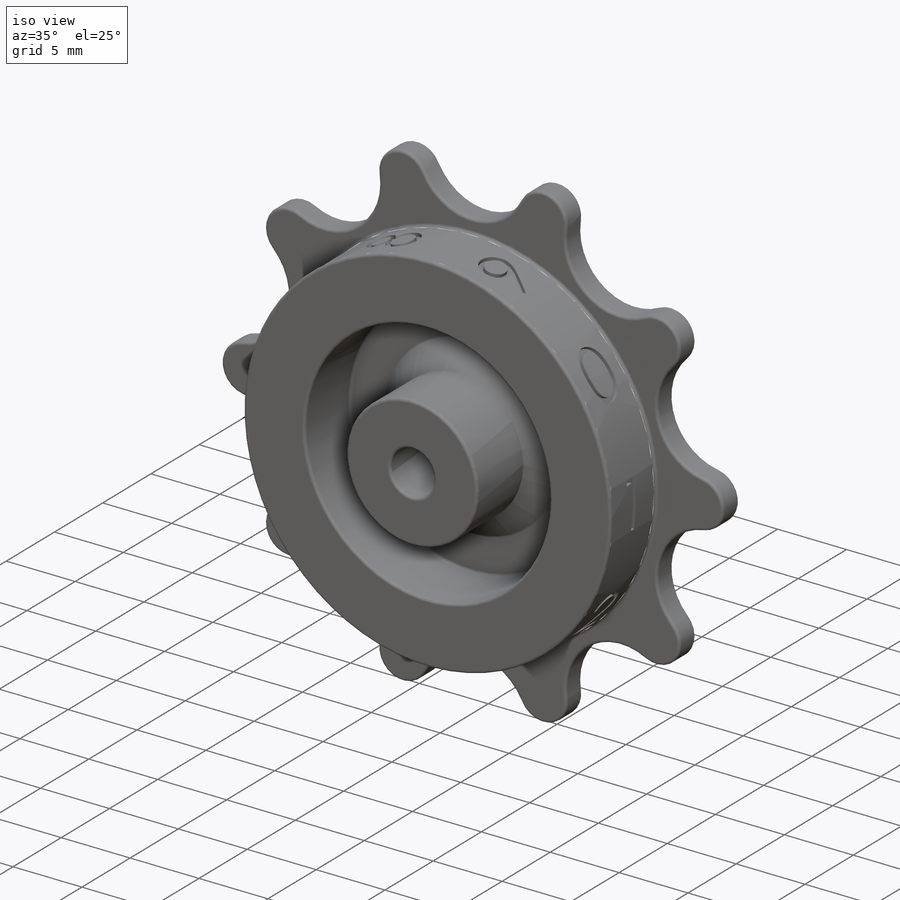
[diagram: iso view]
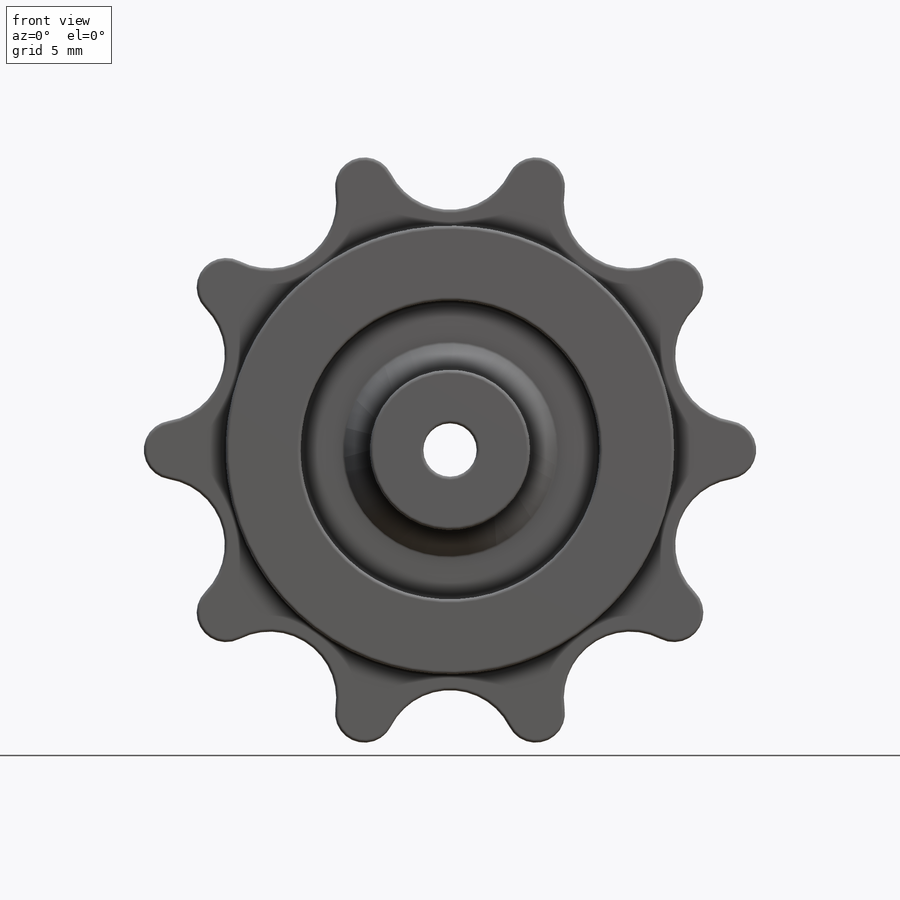
[diagram: front view]
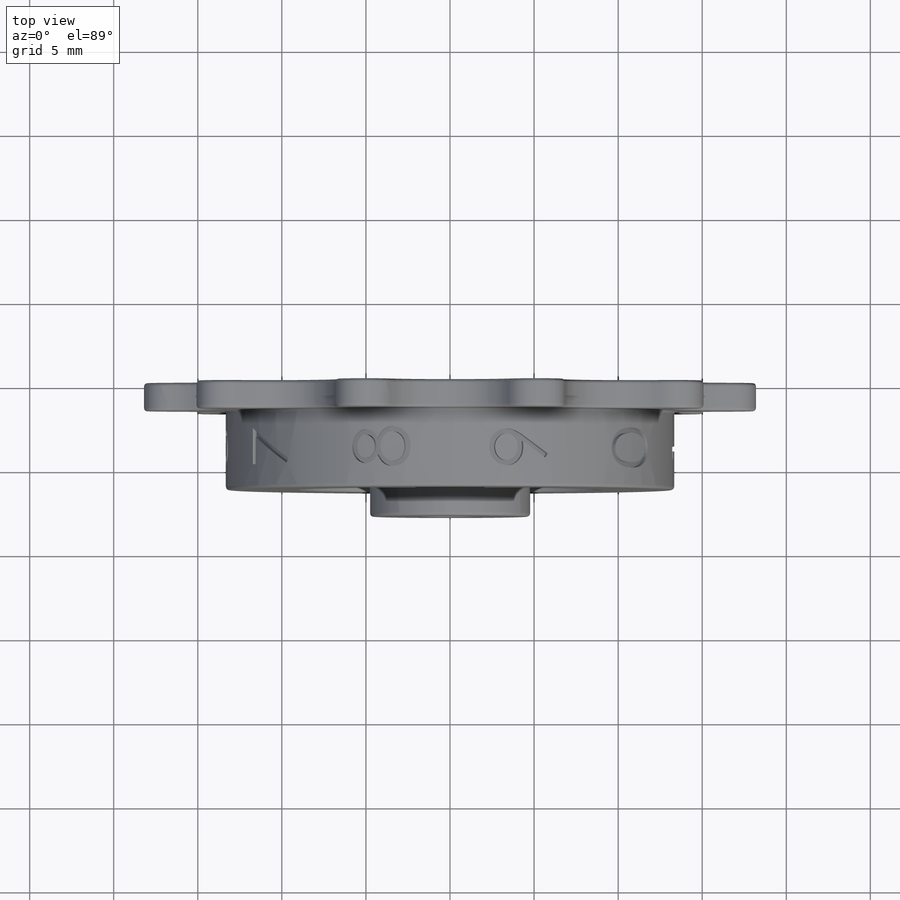
[diagram: top view]
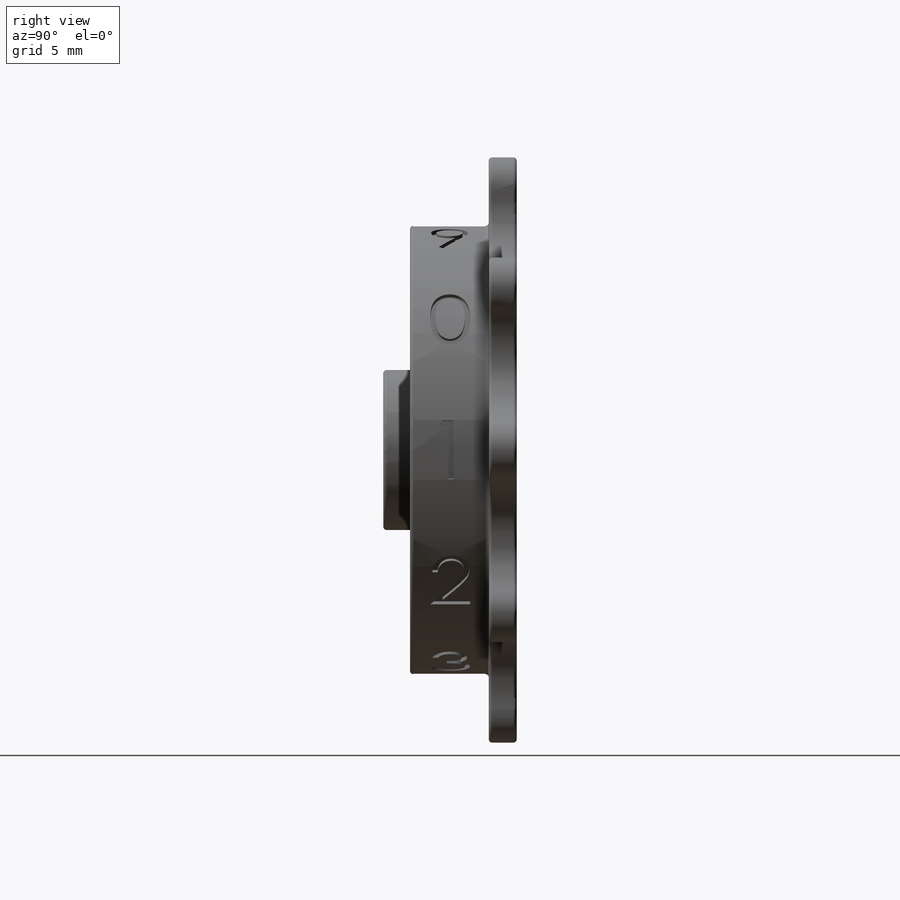
[diagram: right view]
SOLIDWORKS PART (.sldprt)
format: sldprt  version: not decoded by parser v0  size: 1,327,104 bytes
history: native  units: mm
features: sketch x9, extrude x4, plane x3, material x1, revolve x1, cut_extrude x1, fillet x1 (+16 scaffold rows collapsed)
feature tree (36):
  scaffold x16  (default folders/planes/origin — collapsed)
  material  "Material <not specified>"
  sketch  "Sketch1"  dims[c1.D1=28.575mm c1.D2=36.4236mm c1.D3=38.1mm c1.D4=12.7mm c1.D5=12.7mm c1.D6=12.7mm c2.D5=6.35mm c2.D6=6.35mm c3.D5=10.9982mm c3.D7=12.7mm c4.D5=10.5mm c4.D6=3.5mm c5.D5=3.5mm c5.D6=~1.550031mm c6.D5=~3.333356mm c7.D5=~94.752969deg c8.D5=~9.230143mm c9.D5=17.5deg c9.D6=19.05mm c10.D6=17.5deg]
  extrude  "Extrude1"  Depth=1.6637mm
  sketch  "Sketch2"  dims[D1=26.67mm D2=4.445mm]
  extrude  "Extrude2"  Depth=6.35mm
  sketch  "3DSketch1"
  plane  "Plane1"  Offset=3.175mm
  sketch  "Sketch4"  dims[D1=9.525mm]
  extrude  "Extrude3"  [1 undecoded]
  sketch  "Sketch5"
  revolve  "Revolve1"  Angle=360deg
  sketch  "Sketch6"
  extrude  "Extrude4"  Depth=7.9375mm
  sketch  "Sketch7"  dims[D1=3.175mm]
  cut_extrude  "Extrude5"  [1 undecoded]
  fillet  "Fillet4"  Radius=0.198437mm
  sketch  "Sketch10"
  plane  "Plane2"
  plane  "Plane12"
  sketch  "Sketch11"  dims[D1=0.254mm]
decode coverage: 10 of 16 modeling features carry decoded parameters
note: ~ marks probable driven/reference dimensions
note: 2 parameter values undecoded
note: suppression state not decoded; provenance and decode notes live in map.json
